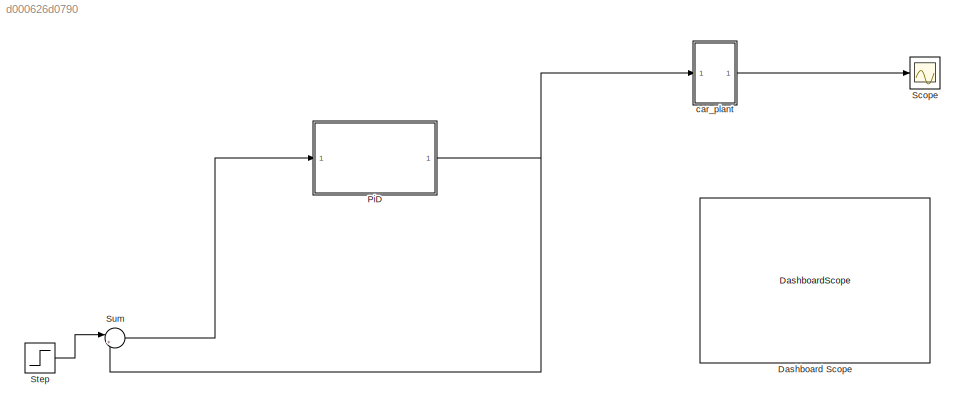
MODEL slx_d000626d0790
KIND model
CONFIG AbsTol = auto
CONFIG EnableMultiTasking = off
CONFIG FixedStep = auto
CONFIG MaxStep = auto
CONFIG MinStep = auto
CONFIG PreLoadFcn = b=50;\nm=1000;\nu=500;\nkd=346;\nki=76;\nkp=1000;\nN=100000
CONFIG RelTol = 1e-3
CONFIG SampleTimeConstraint = Unconstrained
CONFIG Solver = VariableStepAuto
CONFIG SolverName = VariableStepAuto
CONFIG StartTime = 0.0
CONFIG StopTime = 10.0
BLOCK [DashboardScope] Dashboard Scope
BLOCK [ModelReference] PiD
  ModelNameDialog = pid_controller
  ModelReferenceVersion = 1.6
  Ports = [1, 1]
BLOCK [Scope] Scope
  Floating = off
  NumInputPorts = 1
  Ports = [1]
  ScopeSpecificationString = Simulink.scopes.TimeScopeBlockCfg('CurrentConfiguration', extmgr.ConfigurationSet(extmgr.Configuration('Core','General UI',true),extmgr.Configuration('Core','Source UI',true),extmgr.Configuration('Sources','WiredSimulink',true),extmgr.Configuration('Visuals','Time Domain',true,'SerializedDisplays',{struct('MinYLimReal','-0.4915','MaxYLimReal','4.42348','YLabelReal','','MinYLimMag','0.00000','MaxYL...<+1381ch>
BLOCK [Step] Step
  After = u
  SampleTime = 0
  Time = 0
BLOCK [Sum] Sum
  Inputs = |+-
  Ports = [2, 1]
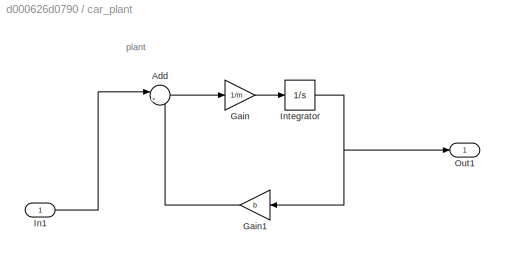
BLOCK [SubSystem] car_plant
  Ports = [1, 1]
  RequestExecContextInheritance = off
BLOCK [Sum] car_plant/Add
  Inputs = |+-
  Ports = [2, 1]
BLOCK [Gain] car_plant/Gain
  Gain = 1/m
BLOCK [Gain] car_plant/Gain1
  Gain = b
  NameLocation = top
BLOCK [Inport] car_plant/In1
BLOCK [Integrator] car_plant/Integrator
  Ports = [1, 1]
BLOCK [Outport] car_plant/Out1
ANNOTATION car_plant: plant
NET PiD:1 -> Sum:2, car_plant:1
LINE Step:1 -> Sum:1
LINE Sum:1 -> PiD:1
LINE car_plant/Add:1 -> car_plant/Gain:1
LINE car_plant/Gain1:1 -> car_plant/Add:2
LINE car_plant/Gain:1 -> car_plant/Integrator:1
LINE car_plant/In1:1 -> car_plant/Add:1
NET car_plant/Integrator:1 -> car_plant/Gain1:1, car_plant/Out1:1
LINE car_plant:1 -> Scope:1
note: NET lines group one-source signal fan-out (src -> all destinations, sorted); 1:1 wires keep LINE
